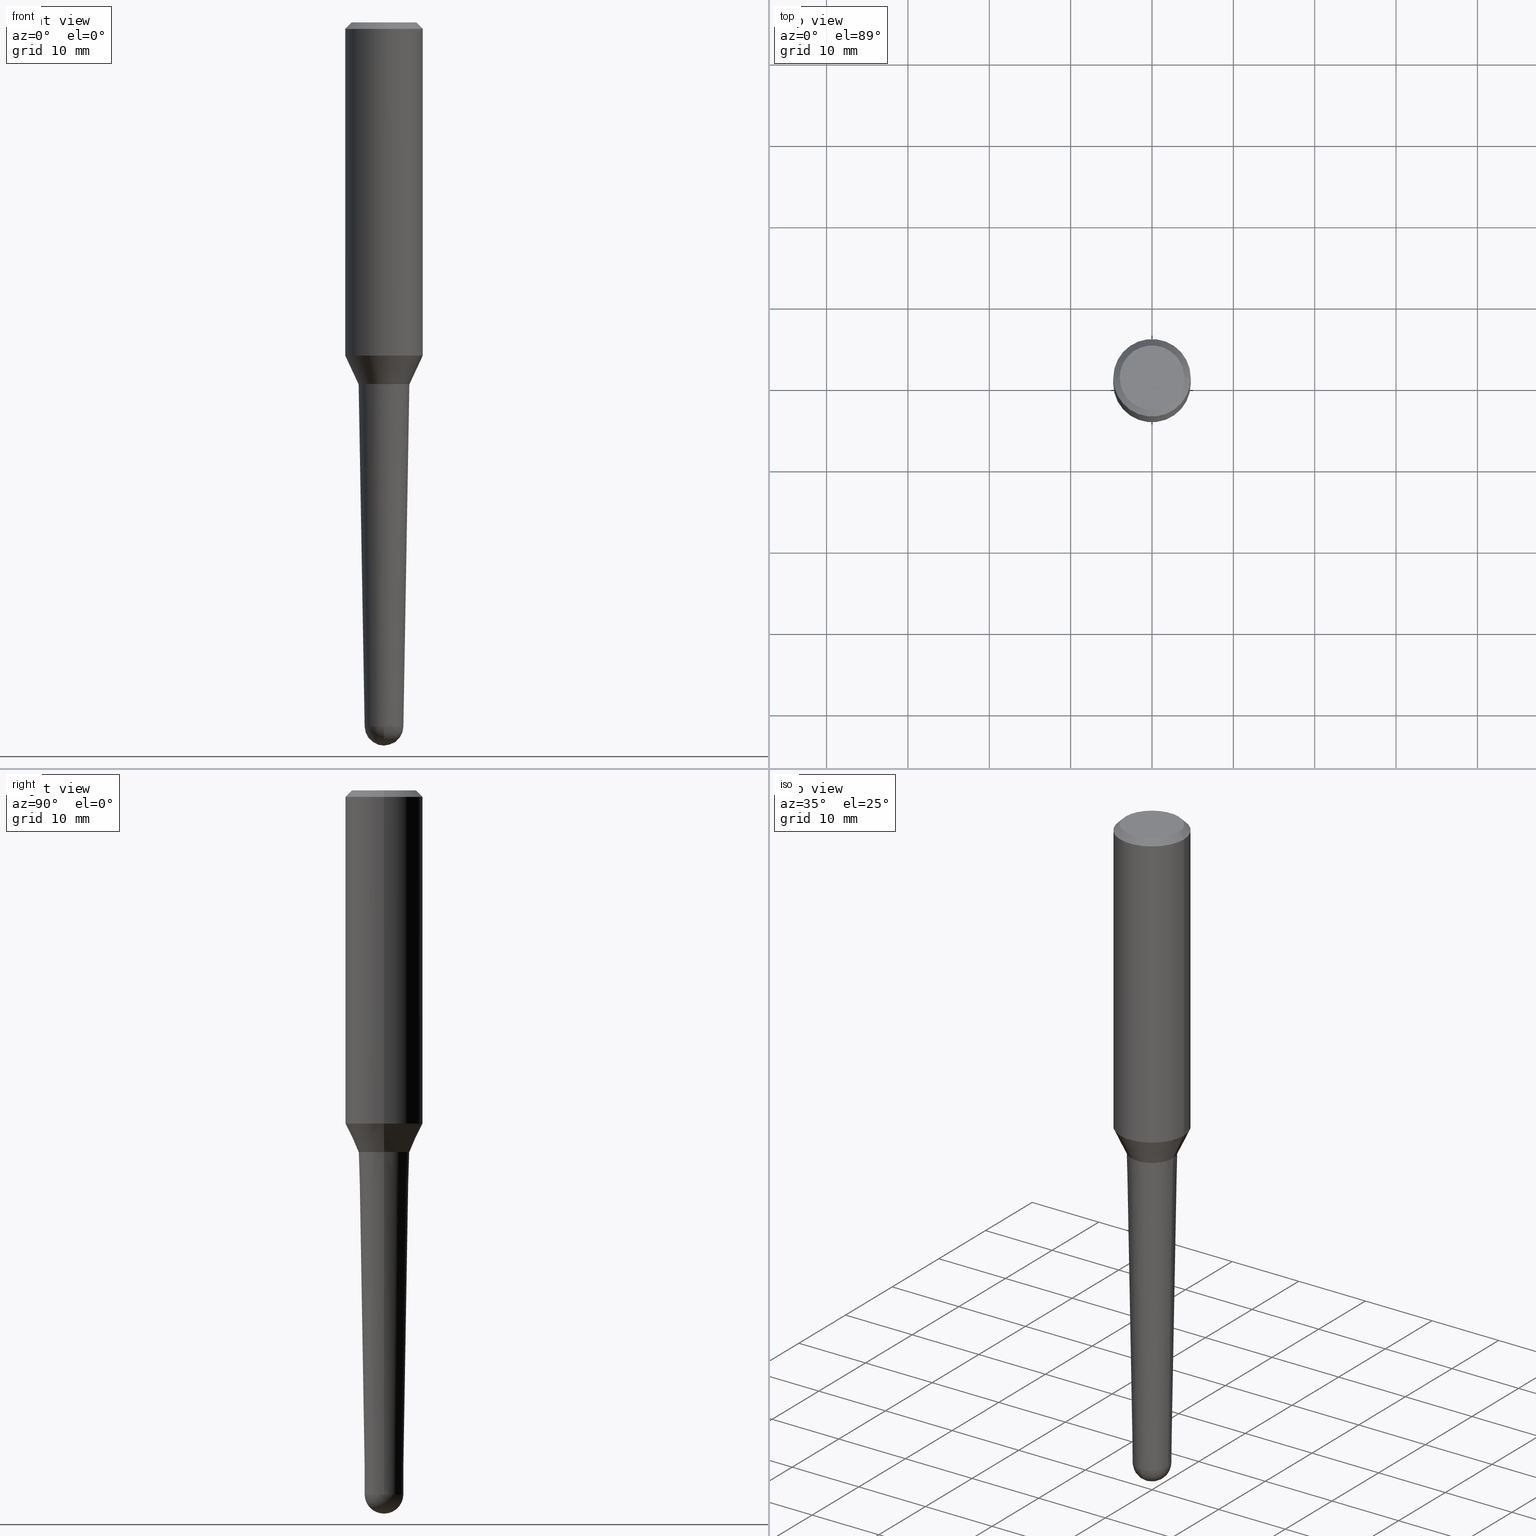
[diagram: canonical four-view strip — front | top / right | iso, engineering-drawing reading convention]
A machine part, canonical four-view strip (front | top / right | iso — engineering-drawing reading convention). The complete STEP part file that produces these views, byte-faithful:
ISO-10303-21;
HEADER;
FILE_DESCRIPTION (( 'STEP AP203' ),
    '1' );
FILE_NAME ('32452.STEP',
    '2024-03-04T15:24:41',
    ( '' ),
    ( '' ),
    'SwSTEP 2.0',
    'SolidWorks 2023',
    '' );
FILE_SCHEMA (( 'CONFIG_CONTROL_DESIGN' ));
ENDSEC;

DATA;
#1 = ORIENTED_EDGE ( 'NONE', *, *, #111, .T. ) ;
#2 = MANIFOLD_SOLID_BREP ( 'Body-Move/Copy2[2]', #63 ) ;
#3 = DIRECTION ( 'NONE',  ( -1.000000000000000000, 6.982962677686266711E-15, -4.883557194083112901E-29 ) ) ;
#4 = CIRCLE ( 'NONE', #295, 0.1227233669046327580 ) ;
#5 = DIRECTION ( 'NONE',  ( 1.000000000000000000, -6.982962677686268288E-15, 0.000000000000000000 ) ) ;
#6 = AXIS2_PLACEMENT_3D ( 'NONE', #57, #405, #99 ) ;
#7 = ADVANCED_FACE ( 'NONE', ( #416 ), #244, .T. ) ;
#8 = PLANE ( 'NONE',  #119 ) ;
#9 = CARTESIAN_POINT ( 'NONE',  ( 8.333759167425016491E-29, -1.189839941604824975E-14, -3.407837035723817021 ) ) ;
#10 = MANIFOLD_SOLID_BREP ( 'Body-Move/Copy2[1]', #52 ) ;
#11 = EDGE_CURVE ( 'NONE', #127, #372, #118, .T. ) ;
#12 = PERSON ( 'UNSPECIFIED', 'UNSPECIFIED', 'UNSPECIFIED', ('UNSPECIFIED'), ('UNSPECIFIED'), ('UNSPECIFIED') ) ;
#13 = DATE_AND_TIME ( #223, #462 ) ;
#14 = CC_DESIGN_APPROVAL ( #404, ( #74 ) ) ;
#15 = DIRECTION ( 'NONE',  ( 6.982962677686266711E-15, 1.000000000000000000, -5.824835807386488998E-15 ) ) ;
#16 = CONICAL_SURFACE ( 'NONE', #26, 0.09378571380566988469, 0.01745329251994321915 ) ;
#17 = APPROVAL_STATUS ( 'not_yet_approved' ) ;
#18 = EDGE_CURVE ( 'NONE', #177, #127, #250, .T. ) ;
#19 = VERTEX_POINT ( 'NONE', #282 ) ;
#20 = CYLINDRICAL_SURFACE ( 'NONE', #156, 0.1875000000000001110 ) ;
#21 = SECURITY_CLASSIFICATION_LEVEL ( 'unclassified' ) ;
#22 = ORIENTED_EDGE ( 'NONE', *, *, #18, .F. ) ;
#23 = DIRECTION ( 'NONE',  ( 1.000000000000000000, -6.982962677686265133E-15, 0.000000000000000000 ) ) ;
#24 = EDGE_CURVE ( 'NONE', #56, #19, #422, .T. ) ;
#25 = LOCAL_TIME ( 10, 24, 41.00000000000000000, #328 ) ;
#26 = AXIS2_PLACEMENT_3D ( 'NONE', #297, #84, #125 ) ;
#27 = ORIENTED_EDGE ( 'NONE', *, *, #323, .T. ) ;
#28 = DIRECTION ( 'NONE',  ( 1.000000000000000000, -6.982962677686267499E-15, 4.891558762689322855E-29 ) ) ;
#29 = SHAPE_DEFINITION_REPRESENTATION ( #271, #447 ) ;
#30 = ORIENTED_EDGE ( 'NONE', *, *, #341, .T. ) ;
#31 = LINE ( 'NONE', #93, #299 ) ;
#32 = CC_DESIGN_PERSON_AND_ORGANIZATION_ASSIGNMENT ( #85, #432, ( #238 ) ) ;
#33 = CARTESIAN_POINT ( 'NONE',  ( 0.09378571380566988469, -1.255330155525340776E-14, -3.407837035723817021 ) ) ;
#34 = CIRCLE ( 'NONE', #374, 0.1875000000000002220 ) ;
#35 = CARTESIAN_POINT ( 'NONE',  ( 7.642090019328561499E-31, -1.091087918388484350E-16, -0.03125000000000003469 ) ) ;
#36 = ORIENTED_EDGE ( 'NONE', *, *, #310, .T. ) ;
#37 = CARTESIAN_POINT ( 'NONE',  ( 4.279570410823989605E-29, -6.110092342975506249E-15, -1.750000000000000444 ) ) ;
#38 = VERTEX_POINT ( 'NONE', #144 ) ;
#39 = LOCAL_TIME ( 10, 24, 41.00000000000000000, #268 ) ;
#40 = AXIS2_PLACEMENT_3D ( 'NONE', #381, #313, #314 ) ;
#41 = CONICAL_SURFACE ( 'NONE', #433, 0.1874999999999999722, 0.7853981633974497223 ) ;
#42 = ORIENTED_EDGE ( 'NONE', *, *, #366, .F. ) ;
#43 = DIRECTION ( 'NONE',  ( 6.982962677686266711E-15, 1.000000000000000000, 0.000000000000000000 ) ) ;
#44 = CARTESIAN_POINT ( 'NONE',  ( -1.450455682483482035E-44, 2.070866303999251778E-30, 5.931196827434296760E-16 ) ) ;
#45 = VECTOR ( 'NONE', #337, 39.37007874015748143 ) ;
#46 = CARTESIAN_POINT ( 'NONE',  ( 7.642090019328561499E-31, -1.091087918388484350E-16, -0.03125000000000003469 ) ) ;
#47 = EDGE_CURVE ( 'NONE', #339, #372, #418, .T. ) ;
#48 = DIRECTION ( 'NONE',  ( 1.000000000000000000, -6.982962677686265133E-15, 0.000000000000000000 ) ) ;
#49 = PERSON_AND_ORGANIZATION ( #12, #209 ) ;
#50 = APPROVAL_ROLE ( '' ) ;
#51 = ORIENTED_EDGE ( 'NONE', *, *, #305, .F. ) ;
#52 = CLOSED_SHELL ( 'NONE', ( #210, #461, #212, #276, #434 ) ) ;
#53 = CIRCLE ( 'NONE', #390, 0.09379999999999999449 ) ;
#54 = VERTEX_POINT ( 'NONE', #221 ) ;
#55 = APPROVAL_STATUS ( 'not_yet_approved' ) ;
#56 = VERTEX_POINT ( 'NONE', #395 ) ;
#57 = CARTESIAN_POINT ( 'NONE',  ( 4.279570410823989044E-29, -6.110092342975505460E-15, -1.750000000000000222 ) ) ;
#58 = CALENDAR_DATE ( 2024, 4, 3 ) ;
#59 = ORIENTED_EDGE ( 'NONE', *, *, #122, .T. ) ;
#60 = DIRECTION ( 'NONE',  ( 1.000000000000000000, -6.982962677686268288E-15, 0.000000000000000000 ) ) ;
#61 = CIRCLE ( 'NONE', #150, 0.1232233669046327584 ) ;
#62 = VERTEX_POINT ( 'NONE', #180 ) ;
#63 = CLOSED_SHELL ( 'NONE', ( #81, #7, #355, #452, #219, #291, #83, #183, #258, #207 ) ) ;
#64 = CARTESIAN_POINT ( 'NONE',  ( -0.1237233669046324813, -5.229239206327401940E-15, -1.749500000000000277 ) ) ;
#65 = EDGE_CURVE ( 'NONE', #38, #177, #277, .T. ) ;
#66 = FACE_OUTER_BOUND ( 'NONE', #165, .T. ) ;
#67 = CARTESIAN_POINT ( 'NONE',  ( -0.1232233669046327584, -5.234537660675622764E-15, -1.750000000000000444 ) ) ;
#68 = CC_DESIGN_APPROVAL ( #186, ( #338 ) ) ;
#69 = DIRECTION ( 'NONE',  ( 1.000000000000000000, -6.982962677686266711E-15, 0.000000000000000000 ) ) ;
#70 = ORIENTED_EDGE ( 'NONE', *, *, #371, .F. ) ;
#71 = ORIENTED_EDGE ( 'NONE', *, *, #47, .T. ) ;
#72 = FACE_OUTER_BOUND ( 'NONE', #206, .T. ) ;
#73 = EDGE_LOOP ( 'NONE', ( #231, #133, #70, #141 ) ) ;
#74 = PRODUCT_DEFINITION_FORMATION_WITH_SPECIFIED_SOURCE ( 'ANY', '', #238, .NOT_KNOWN. ) ;
#75 = CIRCLE ( 'NONE', #356, 0.1232233669046327584 ) ;
#76 = ORIENTED_EDGE ( 'NONE', *, *, #138, .F. ) ;
#77 = CARTESIAN_POINT ( 'NONE',  ( 4.278347676420897364E-29, -6.108346602306083956E-15, -1.749500000000000277 ) ) ;
#78 = EDGE_LOOP ( 'NONE', ( #27, #109 ) ) ;
#79 = FACE_OUTER_BOUND ( 'NONE', #280, .T. ) ;
#80 = CARTESIAN_POINT ( 'NONE',  ( 4.279570410823989605E-29, -6.110092342975506249E-15, -1.750000000000000444 ) ) ;
#81 = ADVANCED_FACE ( 'NONE', ( #257 ), #41, .T. ) ;
#82 = LOCAL_TIME ( 10, 24, 41.00000000000000000, #437 ) ;
#83 = ADVANCED_FACE ( 'NONE', ( #363 ), #178, .T. ) ;
#84 = DIRECTION ( 'NONE',  ( -2.445468806185136597E-29, 3.491481338843145583E-15, 1.000000000000000000 ) ) ;
#85 = PERSON_AND_ORGANIZATION ( #12, #209 ) ;
#86 = DIRECTION ( 'NONE',  ( 0.000000000000000000, 0.000000000000000000, 1.000000000000000000 ) ) ;
#87 =( CONVERSION_BASED_UNIT ( 'INCH', #364 ) LENGTH_UNIT ( ) NAMED_UNIT ( #147 ) );
#88 = DIRECTION ( 'NONE',  ( 1.000000000000000000, -6.982962677686266711E-15, 0.000000000000000000 ) ) ;
#89 = ORIENTED_EDGE ( 'NONE', *, *, #322, .T. ) ;
#90 = DIRECTION ( 'NONE',  ( -2.438088387897960049E-29, 3.491481338843145188E-15, 1.000000000000000000 ) ) ;
#91 = CALENDAR_DATE ( 2024, 4, 3 ) ;
#92 = ORIENTED_EDGE ( 'NONE', *, *, #24, .F. ) ;
#93 = CARTESIAN_POINT ( 'NONE',  ( 0.1875000000000001110, -1.309305502066173628E-15, 5.931196827434387479E-16 ) ) ;
#94 = APPROVAL_PERSON_ORGANIZATION ( #333, #186, #347 ) ;
#95 = ORIENTED_EDGE ( 'NONE', *, *, #138, .T. ) ;
#96 = CIRCLE ( 'NONE', #453, 0.09378571380566988469 ) ;
#97 = CARTESIAN_POINT ( 'NONE',  ( 4.279570410823989605E-29, -6.110092342975506249E-15, -1.750000000000000444 ) ) ;
#98 = ORIENTED_EDGE ( 'NONE', *, *, #421, .T. ) ;
#99 = DIRECTION ( 'NONE',  ( 1.000000000000000000, -6.982962677686264344E-15, 0.000000000000000000 ) ) ;
#100 = CARTESIAN_POINT ( 'NONE',  ( 8.333759167425016491E-29, -1.189839941604824975E-14, -3.407837035723817021 ) ) ;
#101 = AXIS2_PLACEMENT_3D ( 'NONE', #285, #315, #15 ) ;
#102 = CARTESIAN_POINT ( 'NONE',  ( -0.1875000000000001110, 1.332267629550190807E-15, 5.931196827434205055E-16 ) ) ;
#103 = CC_DESIGN_PERSON_AND_ORGANIZATION_ASSIGNMENT ( #367, #193, ( #338 ) ) ;
#104 = DIRECTION ( 'NONE',  ( 1.000000000000000000, -6.982962677686264344E-15, 0.000000000000000000 ) ) ;
#105 = EDGE_CURVE ( 'NONE', #176, #170, #96, .T. ) ;
#106 = DIRECTION ( 'NONE',  ( -2.445468806185136597E-29, 3.491481338843145583E-15, 1.000000000000000000 ) ) ;
#107 = AXIS2_PLACEMENT_3D ( 'NONE', #243, #410, #343 ) ;
#108 = AXIS2_PLACEMENT_3D ( 'NONE', #290, #227, #425 ) ;
#109 = ORIENTED_EDGE ( 'NONE', *, *, #249, .T. ) ;
#110 = CARTESIAN_POINT ( 'NONE',  ( 0.09378571380566988469, -9.760183294501979653E-15, -3.407837035723817021 ) ) ;
#111 = EDGE_CURVE ( 'NONE', #339, #392, #412, .T. ) ;
#112 = DIRECTION ( 'NONE',  ( 2.438088387897960049E-29, -3.491481338843145188E-15, -1.000000000000000000 ) ) ;
#113 = CC_DESIGN_DATE_AND_TIME_ASSIGNMENT ( #365, #403, ( #429 ) ) ;
#114 = VERTEX_POINT ( 'NONE', #188 ) ;
#115 = FACE_OUTER_BOUND ( 'NONE', #368, .T. ) ;
#116 = VECTOR ( 'NONE', #131, 39.37007874015748143 ) ;
#117 = VERTEX_POINT ( 'NONE', #327 ) ;
#118 = CIRCLE ( 'NONE', #354, 0.1874999999999999722 ) ;
#119 = AXIS2_PLACEMENT_3D ( 'NONE', #428, #112, #260 ) ;
#120 = PERSON_AND_ORGANIZATION_ROLE ( 'design_supplier' ) ;
#121 = ORIENTED_EDGE ( 'NONE', *, *, #421, .F. ) ;
#122 = EDGE_CURVE ( 'NONE', #62, #117, #75, .T. ) ;
#123 = CARTESIAN_POINT ( 'NONE',  ( 0.000000000000000000, 0.000000000000000000, 0.000000000000000000 ) ) ;
#124 = ORIENTED_EDGE ( 'NONE', *, *, #298, .T. ) ;
#125 = DIRECTION ( 'NONE',  ( 1.000000000000000000, -6.982962677686268288E-15, 0.000000000000000000 ) ) ;
#126 = APPROVAL_ROLE ( '' ) ;
#127 = VERTEX_POINT ( 'NONE', #289 ) ;
#128 = DIRECTION ( 'NONE',  ( 1.000000000000000000, -6.982962677686265922E-15, 4.876176775795935793E-29 ) ) ;
#129 = COORDINATED_UNIVERSAL_TIME_OFFSET ( 5, 0, .BEHIND. ) ;
#130 = EDGE_LOOP ( 'NONE', ( #36, #30, #294, #303 ) ) ;
#131 = DIRECTION ( 'NONE',  ( 0.7071067811862336017, -2.468850131078969088E-15, 0.7071067811868614328 ) ) ;
#132 = CARTESIAN_POINT ( 'NONE',  ( 8.333759167425016491E-29, -1.189839941604824975E-14, -3.407837035723817021 ) ) ;
#133 = ORIENTED_EDGE ( 'NONE', *, *, #232, .T. ) ;
#134 = AXIS2_PLACEMENT_3D ( 'NONE', #424, #398, #48 ) ;
#135 = LINE ( 'NONE', #33, #45 ) ;
#136 = EDGE_LOOP ( 'NONE', ( #436, #300, #253, #265 ) ) ;
#137 = DIRECTION ( 'NONE',  ( 1.000000000000000000, -6.982962677686268288E-15, 0.000000000000000000 ) ) ;
#138 = EDGE_CURVE ( 'NONE', #372, #127, #237, .T. ) ;
#139 = DIRECTION ( 'NONE',  ( -2.445468806185136597E-29, 3.491481338843145583E-15, 1.000000000000000000 ) ) ;
#140 = CONICAL_SURFACE ( 'NONE', #155, 0.09378571380566988469, 0.01745329251994321915 ) ;
#141 = ORIENTED_EDGE ( 'NONE', *, *, #349, .F. ) ;
#142 = DIRECTION ( 'NONE',  ( -0.01745240643728343533, 3.614956375479315570E-15, 0.9998476951563912696 ) ) ;
#143 = DIRECTION ( 'NONE',  ( -1.000000000000000000, 6.982962677686265922E-15, -4.876176775795935793E-29 ) ) ;
#144 = CARTESIAN_POINT ( 'NONE',  ( -0.1562500000000006939, 1.145642314307903724E-15, -8.364248946791608996E-16 ) ) ;
#145 = EDGE_CURVE ( 'NONE', #449, #170, #53, .T. ) ;
#146 = PLANE ( 'NONE',  #448 ) ;
#147 = DIMENSIONAL_EXPONENTS ( 1.000000000000000000, 0.000000000000000000, 0.000000000000000000, 0.000000000000000000, 0.000000000000000000, 0.000000000000000000, 0.000000000000000000 ) ;
#148 = DIRECTION ( 'NONE',  ( 6.982962677686266711E-15, 1.000000000000000000, -5.824835807386488998E-15 ) ) ;
#149 = DIRECTION ( 'NONE',  ( 1.000000000000000000, -6.982962677686268288E-15, 0.000000000000000000 ) ) ;
#150 = AXIS2_PLACEMENT_3D ( 'NONE', #97, #168, #60 ) ;
#151 = UNCERTAINTY_MEASURE_WITH_UNIT (LENGTH_MEASURE( 1.000000000000000082E-05 ), #87, 'distance_accuracy_value', 'NONE');
#152 = EDGE_CURVE ( 'NONE', #114, #176, #278, .T. ) ;
#153 = DIRECTION ( 'NONE',  ( -1.000000000000000000, 6.982962677686266711E-15, 0.000000000000000000 ) ) ;
#154 = DIRECTION ( 'NONE',  ( -2.445468806185136597E-29, 3.491481338843145583E-15, 1.000000000000000000 ) ) ;
#155 = AXIS2_PLACEMENT_3D ( 'NONE', #132, #414, #340 ) ;
#156 = AXIS2_PLACEMENT_3D ( 'NONE', #44, #160, #184 ) ;
#157 =( LENGTH_UNIT ( ) NAMED_UNIT ( * ) SI_UNIT ( $, .METRE. ) );
#158 = CC_DESIGN_PERSON_AND_ORGANIZATION_ASSIGNMENT ( #442, #330, ( #74 ) ) ;
#159 =( NAMED_UNIT ( * ) PLANE_ANGLE_UNIT ( ) SI_UNIT ( $, .RADIAN. ) );
#160 = DIRECTION ( 'NONE',  ( -2.445468806185136597E-29, 3.491481338843145583E-15, 1.000000000000000000 ) ) ;
#161 = VERTEX_POINT ( 'NONE', #288 ) ;
#162 = CARTESIAN_POINT ( 'NONE',  ( -0.1874999999999999722, -1.537696109422416585E-15, -0.03125000000000003469 ) ) ;
#163 = EDGE_CURVE ( 'NONE', #394, #54, #309, .T. ) ;
#164 = PERSON_AND_ORGANIZATION_ROLE ( 'creator' ) ;
#165 = EDGE_LOOP ( 'NONE', ( #369, #59, #379, #174 ) ) ;
#166 = LINE ( 'NONE', #67, #214 ) ;
#167 = LINE ( 'NONE', #171, #274 ) ;
#168 = DIRECTION ( 'NONE',  ( -2.445468806185136597E-29, 3.491481338843145583E-15, 1.000000000000000000 ) ) ;
#169 = AXIS2_PLACEMENT_3D ( 'NONE', #35, #208, #205 ) ;
#170 = VERTEX_POINT ( 'NONE', #430 ) ;
#171 = CARTESIAN_POINT ( 'NONE',  ( 0.1237233669046324813, -6.972302255758816845E-15, -1.749500000000000277 ) ) ;
#172 = CARTESIAN_POINT ( 'NONE',  ( -0.09378571380566988469, -1.123201183942130320E-14, -3.407837035723817021 ) ) ;
#173 = DIRECTION ( 'NONE',  ( -2.445468806185136597E-29, 3.491481338843145583E-15, 1.000000000000000000 ) ) ;
#174 = ORIENTED_EDGE ( 'NONE', *, *, #163, .F. ) ;
#175 = CONICAL_SURFACE ( 'NONE', #329, 0.1237233669046324813, 0.4363323129985725024 ) ;
#176 = VERTEX_POINT ( 'NONE', #110 ) ;
#177 = VERTEX_POINT ( 'NONE', #393 ) ;
#178 = CONICAL_SURFACE ( 'NONE', #256, 0.1237233669046324813, 0.4363323129985725024 ) ;
#179 = EDGE_LOOP ( 'NONE', ( #270, #336 ) ) ;
#180 = CARTESIAN_POINT ( 'NONE',  ( -0.1232233669046327584, -5.231888433501512352E-15, -1.750000000000000444 ) ) ;
#181 = FACE_OUTER_BOUND ( 'NONE', #130, .T. ) ;
#182 = DIRECTION ( 'NONE',  ( -2.445468806185136597E-29, 3.491481338843145583E-15, 1.000000000000000000 ) ) ;
#183 = ADVANCED_FACE ( 'NONE', ( #79 ), #20, .T. ) ;
#184 = DIRECTION ( 'NONE',  ( 1.000000000000000000, -6.982962677686266711E-15, 4.852736867747363404E-29 ) ) ;
#185 = CC_DESIGN_APPROVAL ( #318, ( #429 ) ) ;
#186 = APPROVAL ( #17, 'UNSPECIFIED' ) ;
#187 = CARTESIAN_POINT ( 'NONE',  ( 8.333759167425016491E-29, -1.189839941604824975E-14, -3.407837035723817021 ) ) ;
#188 = CARTESIAN_POINT ( 'NONE',  ( -6.663875766268585857E-16, -0.09378571380568140325, -3.407837035723816577 ) ) ;
#189 = DIRECTION ( 'NONE',  ( 1.000000000000000000, 0.000000000000000000, 0.000000000000000000 ) ) ;
#190 = CONICAL_SURFACE ( 'NONE', #252, 0.1232233669046327584, 0.7853981633970044118 ) ;
#191 = DATE_AND_TIME ( #197, #25 ) ;
#192 = AXIS2_PLACEMENT_3D ( 'NONE', #9, #182, #149 ) ;
#193 = PERSON_AND_ORGANIZATION_ROLE ( 'classification_officer' ) ;
#194 = APPROVAL_DATE_TIME ( #191, #404 ) ;
#195 = ORIENTED_EDGE ( 'NONE', *, *, #232, .F. ) ;
#196 = DIRECTION ( 'NONE',  ( -2.445468806185136597E-29, 3.491481338843145583E-15, 1.000000000000000000 ) ) ;
#197 = CALENDAR_DATE ( 2024, 4, 3 ) ;
#198 = ORIENTED_EDGE ( 'NONE', *, *, #249, .F. ) ;
#199 = AXIS2_PLACEMENT_3D ( 'NONE', #100, #407, #200 ) ;
#200 = DIRECTION ( 'NONE',  ( 1.000000000000000000, -6.982962677686268288E-15, 0.000000000000000000 ) ) ;
#201 = ORIENTED_EDGE ( 'NONE', *, *, #391, .F. ) ;
#202 = DIRECTION ( 'NONE',  ( -2.445468806185136597E-29, 3.491481338843145583E-15, 1.000000000000000000 ) ) ;
#203 = COORDINATED_UNIVERSAL_TIME_OFFSET ( 5, 0, .BEHIND. ) ;
#204 = ORIENTED_EDGE ( 'NONE', *, *, #105, .T. ) ;
#205 = DIRECTION ( 'NONE',  ( -1.000000000000000000, 6.982962677686266711E-15, 0.000000000000000000 ) ) ;
#206 = EDGE_LOOP ( 'NONE', ( #375, #124, #201, #42 ) ) ;
#207 = ADVANCED_FACE ( 'NONE', ( #115 ), #8, .F. ) ;
#208 = DIRECTION ( 'NONE',  ( 2.445468806185136597E-29, -3.491481338843145583E-15, -1.000000000000000000 ) ) ;
#209 = ORGANIZATION ( 'UNSPECIFIED', 'UNSPECIFIED', '' ) ;
#210 = ADVANCED_FACE ( 'NONE', ( #259 ), #16, .T. ) ;
#211 = DIRECTION ( 'NONE',  ( 2.438088387897960049E-29, -3.491481338843145188E-15, -1.000000000000000000 ) ) ;
#212 = ADVANCED_FACE ( 'NONE', ( #370 ), #402, .T. ) ;
#213 = CONICAL_SURFACE ( 'NONE', #222, 0.1232233669046327584, 0.7853981633970044118 ) ;
#214 = VECTOR ( 'NONE', #346, 39.37007874015748143 ) ;
#215 = VECTOR ( 'NONE', #248, 39.37007874015748143 ) ;
#216 = AXIS2_PLACEMENT_3D ( 'NONE', #317, #3, #148 ) ;
#217 = DIRECTION ( 'NONE',  ( -2.445468806185136597E-29, 3.491481338843145583E-15, 1.000000000000000000 ) ) ;
#218 = CARTESIAN_POINT ( 'NONE',  ( 2.045450988654557291E-44, -2.920361911116106855E-30, -8.364248946791531096E-16 ) ) ;
#219 = ADVANCED_FACE ( 'NONE', ( #266 ), #286, .F. ) ;
#220 = EDGE_LOOP ( 'NONE', ( #350, #388, #445, #121 ) ) ;
#221 = CARTESIAN_POINT ( 'NONE',  ( 0.1237233669046324813, -6.972302255758817634E-15, -1.749500000000000277 ) ) ;
#222 = AXIS2_PLACEMENT_3D ( 'NONE', #37, #173, #312 ) ;
#223 = CALENDAR_DATE ( 2024, 4, 3 ) ;
#224 = APPROVAL_DATE_TIME ( #226, #318 ) ;
#225 = CIRCLE ( 'NONE', #6, 0.1227233669046327580 ) ;
#226 = DATE_AND_TIME ( #401, #82 ) ;
#227 = DIRECTION ( 'NONE',  ( -2.445468806185136597E-29, 3.491481338843145583E-15, 1.000000000000000000 ) ) ;
#228 = APPLICATION_CONTEXT ( 'configuration controlled 3d designs of mechanical parts and assemblies' ) ;
#229 = PERSON_AND_ORGANIZATION ( #12, #209 ) ;
#230 = EDGE_LOOP ( 'NONE', ( #195, #427, #384, #234 ) ) ;
#231 = ORIENTED_EDGE ( 'NONE', *, *, #459, .T. ) ;
#232 = EDGE_CURVE ( 'NONE', #394, #339, #240, .T. ) ;
#233 = CARTESIAN_POINT ( 'NONE',  ( 4.279570410823989044E-29, -6.110092342975505460E-15, -1.750000000000000222 ) ) ;
#234 = ORIENTED_EDGE ( 'NONE', *, *, #111, .F. ) ;
#235 = CIRCLE ( 'NONE', #345, 0.1237233669046324813 ) ;
#236 = CARTESIAN_POINT ( 'NONE',  ( 8.333759167425016491E-29, -1.189839941604824975E-14, -3.407837035723817021 ) ) ;
#237 = CIRCLE ( 'NONE', #332, 0.1874999999999999722 ) ;
#238 = PRODUCT ( '32452', '32452', '', ( #439 ) ) ;
#239 = EDGE_LOOP ( 'NONE', ( #273, #344, #457, #51, #204 ) ) ;
#240 = LINE ( 'NONE', #64, #431 ) ;
#241 = CC_DESIGN_PERSON_AND_ORGANIZATION_ASSIGNMENT ( #49, #164, ( #429 ) ) ;
#242 = ORIENTED_EDGE ( 'NONE', *, *, #386, .F. ) ;
#243 = CARTESIAN_POINT ( 'NONE',  ( 8.580960945074257673E-29, -1.153294373911798500E-14, -3.406199999999999672 ) ) ;
#244 = CYLINDRICAL_SURFACE ( 'NONE', #40, 0.1875000000000001110 ) ;
#245 = DATE_AND_TIME ( #91, #353 ) ;
#246 = CARTESIAN_POINT ( 'NONE',  ( 3.943882299173331521E-29, -5.630818686106362922E-15, -1.612730568960181632 ) ) ;
#247 = CIRCLE ( 'NONE', #199, 0.09378571380566988469 ) ;
#248 = DIRECTION ( 'NONE',  ( -2.445468806185136877E-29, 3.491481338843145188E-15, 1.000000000000000000 ) ) ;
#249 = EDGE_CURVE ( 'NONE', #19, #161, #4, .T. ) ;
#250 = LINE ( 'NONE', #413, #377 ) ;
#251 = CARTESIAN_POINT ( 'NONE',  ( 4.278347676420897364E-29, -6.108346602306083956E-15, -1.749500000000000277 ) ) ;
#252 = AXIS2_PLACEMENT_3D ( 'NONE', #378, #373, #137 ) ;
#253 = ORIENTED_EDGE ( 'NONE', *, *, #105, .F. ) ;
#254 = CARTESIAN_POINT ( 'NONE',  ( 7.642090019328561499E-31, -1.091087918388484350E-16, -0.03125000000000003469 ) ) ;
#255 = CARTESIAN_POINT ( 'NONE',  ( -0.1237233669046324813, -5.229239206327401940E-15, -1.749500000000000277 ) ) ;
#256 = AXIS2_PLACEMENT_3D ( 'NONE', #77, #361, #321 ) ;
#257 = FACE_OUTER_BOUND ( 'NONE', #220, .T. ) ;
#258 = ADVANCED_FACE ( 'NONE', ( #269 ), #324, .T. ) ;
#259 = FACE_OUTER_BOUND ( 'NONE', #239, .T. ) ;
#260 = DIRECTION ( 'NONE',  ( -1.000000000000000000, 6.982962677686265922E-15, -4.876176775795935793E-29 ) ) ;
#261 = CIRCLE ( 'NONE', #408, 0.09378571380566988469 ) ;
#262 = DATE_TIME_ROLE ( 'classification_date' ) ;
#263 = ORIENTED_EDGE ( 'NONE', *, *, #47, .F. ) ;
#264 = APPROVAL_PERSON_ORGANIZATION ( #400, #318, #126 ) ;
#265 = ORIENTED_EDGE ( 'NONE', *, *, #152, .F. ) ;
#266 = FACE_OUTER_BOUND ( 'NONE', #179, .T. ) ;
#267 = CC_DESIGN_DATE_AND_TIME_ASSIGNMENT ( #13, #262, ( #338 ) ) ;
#268 = COORDINATED_UNIVERSAL_TIME_OFFSET ( 5, 0, .BEHIND. ) ;
#269 = FACE_OUTER_BOUND ( 'NONE', #455, .T. ) ;
#270 = ORIENTED_EDGE ( 'NONE', *, *, #310, .F. ) ;
#271 = PRODUCT_DEFINITION_SHAPE ( 'NONE', 'NONE',  #429 ) ;
#272 = DIRECTION ( 'NONE',  ( 0.4226182617406904485, 2.132291770428186856E-16, 0.9063077870366541555 ) ) ;
#273 = ORIENTED_EDGE ( 'NONE', *, *, #366, .T. ) ;
#274 = VECTOR ( 'NONE', #272, 39.37007874015748143 ) ;
#275 = CARTESIAN_POINT ( 'NONE',  ( 2.045450988654557291E-44, -2.920361911116106855E-30, -8.364248946791531096E-16 ) ) ;
#276 = ADVANCED_FACE ( 'NONE', ( #279 ), #140, .T. ) ;
#277 = CIRCLE ( 'NONE', #331, 0.1562500000000006939 ) ;
#278 = CIRCLE ( 'NONE', #192, 0.09378571380566988469 ) ;
#279 = FACE_OUTER_BOUND ( 'NONE', #319, .T. ) ;
#280 = EDGE_LOOP ( 'NONE', ( #263, #1, #284, #76 ) ) ;
#281 = CARTESIAN_POINT ( 'NONE',  ( 4.278347676420897364E-29, -6.108346602306083956E-15, -1.749500000000000277 ) ) ;
#282 = CARTESIAN_POINT ( 'NONE',  ( -0.1227233669046327580, -5.238090374354422874E-15, -1.750000000000000222 ) ) ;
#283 = AXIS2_PLACEMENT_3D ( 'NONE', #123, #86, #189 ) ;
#284 = ORIENTED_EDGE ( 'NONE', *, *, #386, .T. ) ;
#285 = CARTESIAN_POINT ( 'NONE',  ( 8.580960945074257673E-29, -1.153294373911798500E-14, -3.406199999999999672 ) ) ;
#286 = PLANE ( 'NONE',  #362 ) ;
#287 = AXIS2_PLACEMENT_3D ( 'NONE', #275, #307, #28 ) ;
#288 = CARTESIAN_POINT ( 'NONE',  ( 0.1227233669046327580, -6.967065033750554701E-15, -1.750000000000000222 ) ) ;
#289 = CARTESIAN_POINT ( 'NONE',  ( 0.1874999999999999722, -1.418414293905023123E-15, -0.03125000000000003469 ) ) ;
#290 = CARTESIAN_POINT ( 'NONE',  ( 4.278347676420897364E-29, -6.108346602306083956E-15, -1.749500000000000277 ) ) ;
#291 = ADVANCED_FACE ( 'NONE', ( #66 ), #190, .T. ) ;
#292 = APPROVAL_PERSON_ORGANIZATION ( #229, #404, #50 ) ;
#293 = APPLICATION_PROTOCOL_DEFINITION ( 'international standard', 'config_control_design', 1994, #454 ) ;
#294 = ORIENTED_EDGE ( 'NONE', *, *, #459, .F. ) ;
#295 = AXIS2_PLACEMENT_3D ( 'NONE', #233, #441, #444 ) ;
#296 = ORIENTED_EDGE ( 'NONE', *, *, #305, .T. ) ;
#297 = CARTESIAN_POINT ( 'NONE',  ( 8.333759167425016491E-29, -1.189839941604824975E-14, -3.407837035723817021 ) ) ;
#298 = EDGE_CURVE ( 'NONE', #449, #114, #409, .T. ) ;
#299 = VECTOR ( 'NONE', #446, 39.37007874015748143 ) ;
#300 = ORIENTED_EDGE ( 'NONE', *, *, #145, .T. ) ;
#301 = DIRECTION ( 'NONE',  ( -0.4226182617406904485, 6.167240084480787913E-15, 0.9063077870366541555 ) ) ;
#302 = APPROVAL_STATUS ( 'not_yet_approved' ) ;
#303 = ORIENTED_EDGE ( 'NONE', *, *, #325, .F. ) ;
#304 = CARTESIAN_POINT ( 'NONE',  ( 1.570369400080726146E-29, -9.989822388505306443E-15, -1.750000000000000222 ) ) ;
#305 = EDGE_CURVE ( 'NONE', #176, #161, #135, .T. ) ;
#306 = CARTESIAN_POINT ( 'NONE',  ( 0.1875000000000002220, -6.940124188172538719E-15, -1.612730568960181632 ) ) ;
#307 = DIRECTION ( 'NONE',  ( -2.445468806185136597E-29, 3.491481338843145583E-15, 1.000000000000000000 ) ) ;
#308 = ORIENTED_EDGE ( 'NONE', *, *, #65, .F. ) ;
#309 = CIRCLE ( 'NONE', #108, 0.1237233669046324813 ) ;
#310 = EDGE_CURVE ( 'NONE', #117, #62, #61, .T. ) ;
#311 = CARTESIAN_POINT ( 'NONE',  ( 0.1232233669046327584, -6.970556515089398497E-15, -1.750000000000000444 ) ) ;
#312 = DIRECTION ( 'NONE',  ( 1.000000000000000000, -6.982962677686268288E-15, 0.000000000000000000 ) ) ;
#313 = DIRECTION ( 'NONE',  ( -2.445468806185136597E-29, 3.491481338843145583E-15, 1.000000000000000000 ) ) ;
#314 = DIRECTION ( 'NONE',  ( 1.000000000000000000, -6.982962677686266711E-15, 4.852736867747363404E-29 ) ) ;
#315 = DIRECTION ( 'NONE',  ( -1.000000000000000000, 6.982962677686266711E-15, -4.883557194083112901E-29 ) ) ;
#316 = SPHERICAL_SURFACE ( 'NONE', #101, 0.09379999999999999449 ) ;
#317 = CARTESIAN_POINT ( 'NONE',  ( 8.580960945074257673E-29, -1.153294373911798500E-14, -3.406199999999999672 ) ) ;
#318 = APPROVAL ( #302, 'UNSPECIFIED' ) ;
#319 = EDGE_LOOP ( 'NONE', ( #92, #440, #334, #296, #198 ) ) ;
#320 = DIRECTION ( 'NONE',  ( 1.000000000000000000, -6.982962677686268288E-15, 0.000000000000000000 ) ) ;
#321 = DIRECTION ( 'NONE',  ( 1.000000000000000000, -6.982962677686264344E-15, 0.000000000000000000 ) ) ;
#322 = EDGE_CURVE ( 'NONE', #177, #38, #419, .T. ) ;
#323 = EDGE_CURVE ( 'NONE', #161, #19, #225, .T. ) ;
#324 = CONICAL_SURFACE ( 'NONE', #169, 0.1874999999999999722, 0.7853981633974497223 ) ;
#325 = EDGE_CURVE ( 'NONE', #117, #54, #451, .T. ) ;
#326 = DIRECTION ( 'NONE',  ( 2.445468806185136597E-29, -3.491481338843145583E-15, -1.000000000000000000 ) ) ;
#327 = CARTESIAN_POINT ( 'NONE',  ( 0.1232233669046327584, -6.970556515089398497E-15, -1.750000000000000444 ) ) ;
#328 = COORDINATED_UNIVERSAL_TIME_OFFSET ( 5, 0, .BEHIND. ) ;
#329 = AXIS2_PLACEMENT_3D ( 'NONE', #281, #202, #417 ) ;
#330 = PERSON_AND_ORGANIZATION_ROLE ( 'creator' ) ;
#331 = AXIS2_PLACEMENT_3D ( 'NONE', #218, #106, #389 ) ;
#332 = AXIS2_PLACEMENT_3D ( 'NONE', #254, #438, #88 ) ;
#333 = PERSON_AND_ORGANIZATION ( #12, #209 ) ;
#334 = ORIENTED_EDGE ( 'NONE', *, *, #152, .T. ) ;
#335 = PERSON_AND_ORGANIZATION ( #12, #209 ) ;
#336 = ORIENTED_EDGE ( 'NONE', *, *, #122, .F. ) ;
#337 = DIRECTION ( 'NONE',  ( 0.01745240643728343533, 3.369080066536508461E-15, 0.9998476951563912696 ) ) ;
#338 = SECURITY_CLASSIFICATION ( '', '', #21 ) ;
#339 = VERTEX_POINT ( 'NONE', #380 ) ;
#340 = DIRECTION ( 'NONE',  ( 1.000000000000000000, -6.982962677686268288E-15, 0.000000000000000000 ) ) ;
#341 = EDGE_CURVE ( 'NONE', #62, #394, #166, .T. ) ;
#342 = DIRECTION ( 'NONE',  ( 1.000000000000000000, -6.982962677686268288E-15, 0.000000000000000000 ) ) ;
#343 = DIRECTION ( 'NONE',  ( -7.105427357601001070E-15, -1.000000000000000000, 0.000000000000000000 ) ) ;
#344 = ORIENTED_EDGE ( 'NONE', *, *, #24, .T. ) ;
#345 = AXIS2_PLACEMENT_3D ( 'NONE', #251, #458, #104 ) ;
#346 = DIRECTION ( 'NONE',  ( -0.7071067811862336017, 7.493145998869219778E-15, 0.7071067811868614328 ) ) ;
#347 = APPROVAL_ROLE ( '' ) ;
#348 = DIRECTION ( 'NONE',  ( -0.7071067811865484609, 2.468850131082267316E-15, -0.7071067811865464625 ) ) ;
#349 = EDGE_CURVE ( 'NONE', #54, #392, #167, .T. ) ;
#350 = ORIENTED_EDGE ( 'NONE', *, *, #322, .F. ) ;
#351 = CARTESIAN_POINT ( 'NONE',  ( 8.814356648990674163E-29, -1.185470109521347181E-14, -3.500000000000000000 ) ) ;
#352 = ORIENTED_EDGE ( 'NONE', *, *, #65, .T. ) ;
#353 = LOCAL_TIME ( 10, 24, 41.00000000000000000, #203 ) ;
#354 = AXIS2_PLACEMENT_3D ( 'NONE', #460, #139, #69 ) ;
#355 = ADVANCED_FACE ( 'NONE', ( #456 ), #175, .T. ) ;
#356 = AXIS2_PLACEMENT_3D ( 'NONE', #80, #154, #5 ) ;
#357 = CARTESIAN_POINT ( 'NONE',  ( -0.1874999999999999722, 1.200196710227326499E-15, -0.03125000000000003469 ) ) ;
#358 = DIRECTION ( 'NONE',  ( 1.000000000000000000, -6.982962677686265922E-15, 4.883557194083112340E-29 ) ) ;
#359 = CARTESIAN_POINT ( 'NONE',  ( 8.580960945074257673E-29, -1.153294373911798500E-14, -3.406199999999999672 ) ) ;
#360 =( GEOMETRIC_REPRESENTATION_CONTEXT ( 3 ) GLOBAL_UNCERTAINTY_ASSIGNED_CONTEXT ( ( #151 ) ) GLOBAL_UNIT_ASSIGNED_CONTEXT ( ( #87, #159, #399 ) ) REPRESENTATION_CONTEXT ( 'NONE', 'WORKASPACE' ) );
#361 = DIRECTION ( 'NONE',  ( -2.445468806185136597E-29, 3.491481338843145583E-15, 1.000000000000000000 ) ) ;
#362 = AXIS2_PLACEMENT_3D ( 'NONE', #304, #90, #128 ) ;
#363 = FACE_OUTER_BOUND ( 'NONE', #230, .T. ) ;
#364 = LENGTH_MEASURE_WITH_UNIT ( LENGTH_MEASURE( 0.02539999999999999897 ), #157 );
#365 = DATE_AND_TIME ( #58, #39 ) ;
#366 = EDGE_CURVE ( 'NONE', #170, #56, #247, .T. ) ;
#367 = PERSON_AND_ORGANIZATION ( #12, #209 ) ;
#368 = EDGE_LOOP ( 'NONE', ( #352, #89 ) ) ;
#369 = ORIENTED_EDGE ( 'NONE', *, *, #341, .F. ) ;
#370 = FACE_OUTER_BOUND ( 'NONE', #136, .T. ) ;
#371 = EDGE_CURVE ( 'NONE', #392, #339, #34, .T. ) ;
#372 = VERTEX_POINT ( 'NONE', #162 ) ;
#373 = DIRECTION ( 'NONE',  ( -2.445468806185136597E-29, 3.491481338843145583E-15, 1.000000000000000000 ) ) ;
#374 = AXIS2_PLACEMENT_3D ( 'NONE', #246, #196, #23 ) ;
#375 = ORIENTED_EDGE ( 'NONE', *, *, #145, .F. ) ;
#376 = DIRECTION ( 'NONE',  ( -2.445468806185136597E-29, 3.491481338843145583E-15, 1.000000000000000000 ) ) ;
#377 = VECTOR ( 'NONE', #382, 39.37007874015748854 ) ;
#378 = CARTESIAN_POINT ( 'NONE',  ( 4.279570410823989605E-29, -6.110092342975506249E-15, -1.750000000000000444 ) ) ;
#379 = ORIENTED_EDGE ( 'NONE', *, *, #325, .T. ) ;
#380 = CARTESIAN_POINT ( 'NONE',  ( -0.1875000000000002220, -4.298551056556173495E-15, -1.612730568960181632 ) ) ;
#381 = CARTESIAN_POINT ( 'NONE',  ( -1.450455682483482035E-44, 2.070866303999251778E-30, 5.931196827434296760E-16 ) ) ;
#382 = DIRECTION ( 'NONE',  ( 0.7071067811865484609, -7.319954787623257623E-15, -0.7071067811865464625 ) ) ;
#383 = CARTESIAN_POINT ( 'NONE',  ( 1.559331563199798171E-29, -1.000562919915345541E-14, -1.750000000000000222 ) ) ;
#384 = ORIENTED_EDGE ( 'NONE', *, *, #349, .T. ) ;
#385 = FACE_OUTER_BOUND ( 'NONE', #78, .T. ) ;
#386 = EDGE_CURVE ( 'NONE', #392, #127, #31, .T. ) ;
#387 = CC_DESIGN_SECURITY_CLASSIFICATION ( #338, ( #74 ) ) ;
#388 = ORIENTED_EDGE ( 'NONE', *, *, #18, .T. ) ;
#389 = DIRECTION ( 'NONE',  ( 1.000000000000000000, -6.982962677686267499E-15, 4.891558762689322855E-29 ) ) ;
#390 = AXIS2_PLACEMENT_3D ( 'NONE', #359, #358, #43 ) ;
#391 = EDGE_CURVE ( 'NONE', #56, #114, #261, .T. ) ;
#392 = VERTEX_POINT ( 'NONE', #306 ) ;
#393 = CARTESIAN_POINT ( 'NONE',  ( 0.1562500000000006939, -1.233702489286410087E-15, -8.364248946791450238E-16 ) ) ;
#394 = VERTEX_POINT ( 'NONE', #255 ) ;
#395 = CARTESIAN_POINT ( 'NONE',  ( -0.09378571380566988469, -8.235051106887862645E-15, -3.407837035723817021 ) ) ;
#396 = PRODUCT_RELATED_PRODUCT_CATEGORY ( 'detail', '', ( #238 ) ) ;
#397 = VECTOR ( 'NONE', #348, 39.37007874015748854 ) ;
#398 = DIRECTION ( 'NONE',  ( -2.445468806185136597E-29, 3.491481338843145583E-15, 1.000000000000000000 ) ) ;
#399 =( NAMED_UNIT ( * ) SI_UNIT ( $, .STERADIAN. ) SOLID_ANGLE_UNIT ( ) );
#400 = PERSON_AND_ORGANIZATION ( #12, #209 ) ;
#401 = CALENDAR_DATE ( 2024, 4, 3 ) ;
#402 = SPHERICAL_SURFACE ( 'NONE', #216, 0.09379999999999999449 ) ;
#403 = DATE_TIME_ROLE ( 'creation_date' ) ;
#404 = APPROVAL ( #55, 'UNSPECIFIED' ) ;
#405 = DIRECTION ( 'NONE',  ( -2.445468806185136597E-29, 3.491481338843145583E-15, 1.000000000000000000 ) ) ;
#406 = ORIENTED_EDGE ( 'NONE', *, *, #371, .T. ) ;
#407 = DIRECTION ( 'NONE',  ( -2.445468806185136597E-29, 3.491481338843145583E-15, 1.000000000000000000 ) ) ;
#408 = AXIS2_PLACEMENT_3D ( 'NONE', #236, #376, #342 ) ;
#409 = CIRCLE ( 'NONE', #107, 0.09379999999999999449 ) ;
#410 = DIRECTION ( 'NONE',  ( -1.000000000000000000, 7.105427357601001070E-15, -4.926315508542082329E-29 ) ) ;
#411 = VECTOR ( 'NONE', #142, 39.37007874015748143 ) ;
#412 = CIRCLE ( 'NONE', #134, 0.1875000000000002220 ) ;
#413 = CARTESIAN_POINT ( 'NONE',  ( 0.1874999999999999722, -1.395452166421010480E-15, -0.03125000000000003469 ) ) ;
#414 = DIRECTION ( 'NONE',  ( -2.445468806185136597E-29, 3.491481338843145583E-15, 1.000000000000000000 ) ) ;
#415 = CC_DESIGN_PERSON_AND_ORGANIZATION_ASSIGNMENT ( #335, #120, ( #74 ) ) ;
#416 = FACE_OUTER_BOUND ( 'NONE', #423, .T. ) ;
#417 = DIRECTION ( 'NONE',  ( 1.000000000000000000, -6.982962677686264344E-15, 0.000000000000000000 ) ) ;
#418 = LINE ( 'NONE', #102, #215 ) ;
#419 = CIRCLE ( 'NONE', #287, 0.1562500000000006939 ) ;
#420 = LINE ( 'NONE', #357, #397 ) ;
#421 = EDGE_CURVE ( 'NONE', #38, #372, #420, .T. ) ;
#422 = LINE ( 'NONE', #172, #411 ) ;
#423 = EDGE_LOOP ( 'NONE', ( #406, #71, #443, #242 ) ) ;
#424 = CARTESIAN_POINT ( 'NONE',  ( 3.943882299173331521E-29, -5.630818686106362922E-15, -1.612730568960181632 ) ) ;
#425 = DIRECTION ( 'NONE',  ( 1.000000000000000000, -6.982962677686264344E-15, 0.000000000000000000 ) ) ;
#426 = DESIGN_CONTEXT ( 'detailed design', #228, 'design' ) ;
#427 = ORIENTED_EDGE ( 'NONE', *, *, #163, .T. ) ;
#428 = CARTESIAN_POINT ( 'NONE',  ( 1.022725494327278645E-44, -1.460180955558053427E-30, -4.182124473395765548E-16 ) ) ;
#429 = PRODUCT_DEFINITION ( 'UNKNOWN', '', #74, #426 ) ;
#430 = CARTESIAN_POINT ( 'NONE',  ( 6.549021392052416310E-16, 0.09378571380565797755, -3.407837035723817465 ) ) ;
#431 = VECTOR ( 'NONE', #301, 39.37007874015748143 ) ;
#432 = PERSON_AND_ORGANIZATION_ROLE ( 'design_owner' ) ;
#433 = AXIS2_PLACEMENT_3D ( 'NONE', #46, #326, #153 ) ;
#434 = ADVANCED_FACE ( 'NONE', ( #385 ), #146, .F. ) ;
#435 = APPLICATION_PROTOCOL_DEFINITION ( 'international standard', 'config_control_design', 1994, #228 ) ;
#436 = ORIENTED_EDGE ( 'NONE', *, *, #298, .F. ) ;
#437 = COORDINATED_UNIVERSAL_TIME_OFFSET ( 5, 0, .BEHIND. ) ;
#438 = DIRECTION ( 'NONE',  ( -2.445468806185136597E-29, 3.491481338843145583E-15, 1.000000000000000000 ) ) ;
#439 = MECHANICAL_CONTEXT ( 'NONE', #454, 'mechanical' ) ;
#440 = ORIENTED_EDGE ( 'NONE', *, *, #391, .T. ) ;
#441 = DIRECTION ( 'NONE',  ( -2.445468806185136597E-29, 3.491481338843145583E-15, 1.000000000000000000 ) ) ;
#442 = PERSON_AND_ORGANIZATION ( #12, #209 ) ;
#443 = ORIENTED_EDGE ( 'NONE', *, *, #11, .F. ) ;
#444 = DIRECTION ( 'NONE',  ( 1.000000000000000000, -6.982962677686264344E-15, 0.000000000000000000 ) ) ;
#445 = ORIENTED_EDGE ( 'NONE', *, *, #11, .T. ) ;
#446 = DIRECTION ( 'NONE',  ( -2.445468806185136877E-29, 3.491481338843145188E-15, 1.000000000000000000 ) ) ;
#447 = ADVANCED_BREP_SHAPE_REPRESENTATION ( '32452', ( #10, #2, #283 ), #360 ) ;
#448 = AXIS2_PLACEMENT_3D ( 'NONE', #383, #211, #143 ) ;
#449 = VERTEX_POINT ( 'NONE', #351 ) ;
#450 = APPROVAL_DATE_TIME ( #245, #186 ) ;
#451 = LINE ( 'NONE', #311, #116 ) ;
#452 = ADVANCED_FACE ( 'NONE', ( #181 ), #213, .T. ) ;
#453 = AXIS2_PLACEMENT_3D ( 'NONE', #187, #217, #320 ) ;
#454 = APPLICATION_CONTEXT ( 'configuration controlled 3d designs of mechanical parts and assemblies' ) ;
#455 = EDGE_LOOP ( 'NONE', ( #22, #308, #98, #95 ) ) ;
#456 = FACE_OUTER_BOUND ( 'NONE', #73, .T. ) ;
#457 = ORIENTED_EDGE ( 'NONE', *, *, #323, .F. ) ;
#458 = DIRECTION ( 'NONE',  ( -2.445468806185136597E-29, 3.491481338843145583E-15, 1.000000000000000000 ) ) ;
#459 = EDGE_CURVE ( 'NONE', #54, #394, #235, .T. ) ;
#460 = CARTESIAN_POINT ( 'NONE',  ( 7.642090019328561499E-31, -1.091087918388484350E-16, -0.03125000000000003469 ) ) ;
#461 = ADVANCED_FACE ( 'NONE', ( #72 ), #316, .T. ) ;
#462 = LOCAL_TIME ( 10, 24, 41.00000000000000000, #129 ) ;
ENDSEC;
END-ISO-10303-21;
